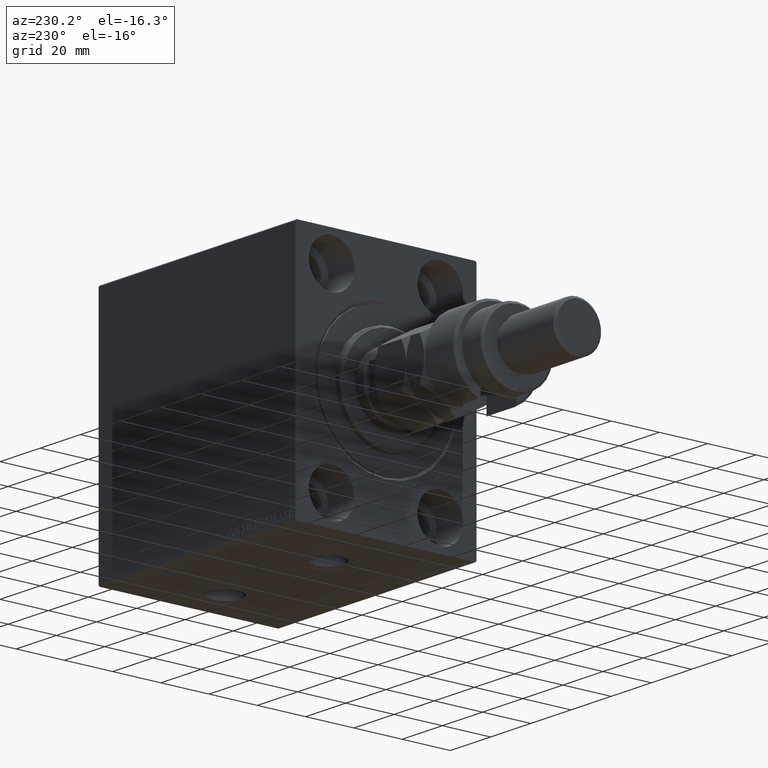
[diagram: clean part render]
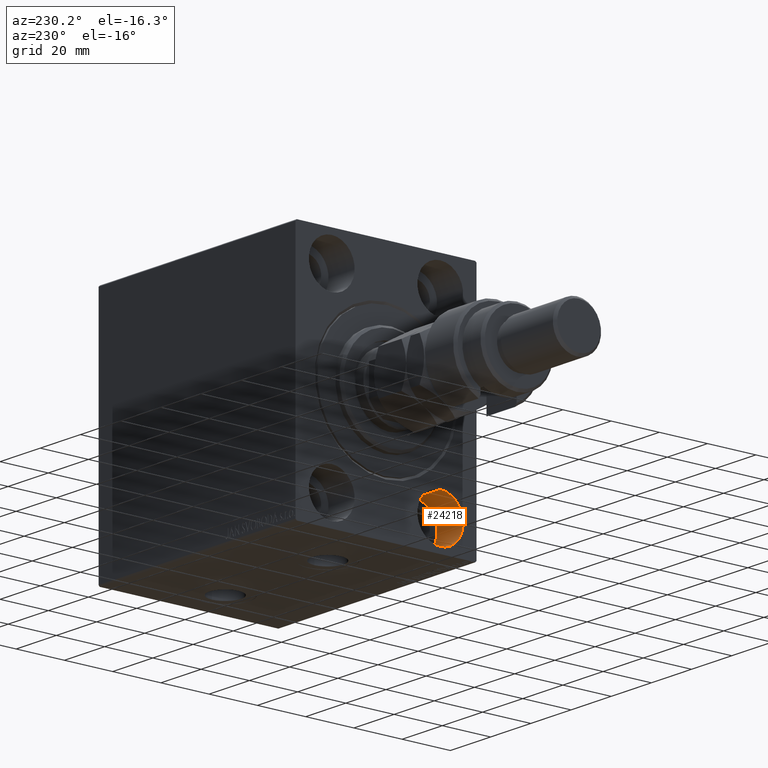
[diagram: same view with one face highlighted and labeled with its STEP entity id]
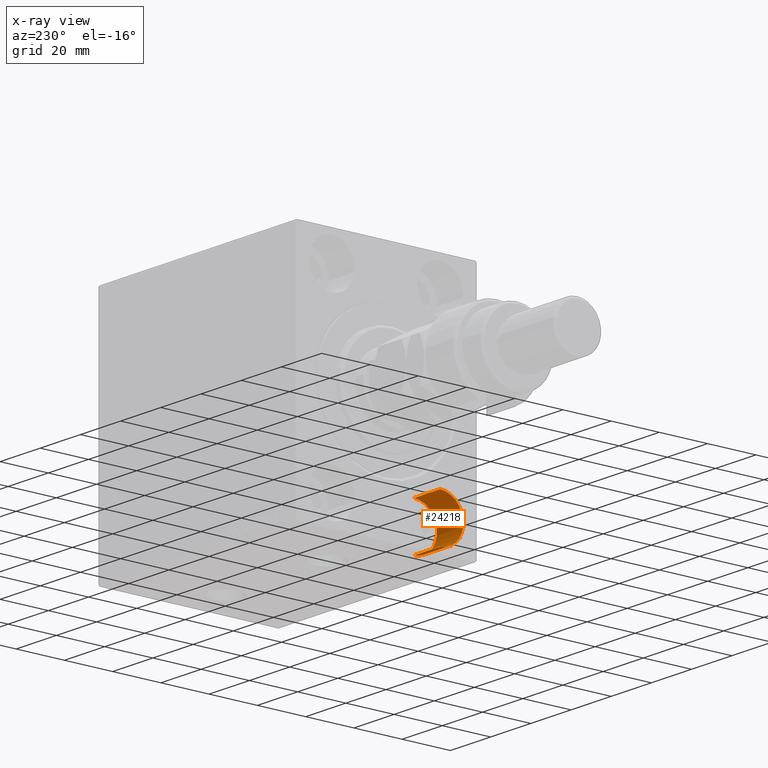
[diagram: x-ray of the same camera — body ghosted, the highlighted face saturated]
A machine part, auxiliary view. The second image highlights one B-rep face of the part: STEP entity #24218.
The next image is the same camera in x-ray: the body ghosted, the highlighted face saturated — about 0% of this face is hidden behind the body in this view.
In plain terms, the highlighted cylindrical surface (edge-blend (fillet) strip) has radius 9.5 mm, axis along (-1, -0, -0).
Its self-contained STEP definition (entity closure, byte-faithful):
#670 = LINE ( 'NONE', #15507, #13563 ) ;
#836 = AXIS2_PLACEMENT_3D ( 'NONE', #4110, #10912, #36983 ) ;
#4043 = EDGE_CURVE ( 'NONE', #7184, #31952, #670, .T. ) ;
#4110 = CARTESIAN_POINT ( 'NONE',  ( 13.00000000000000000, -22.50000000000000711, -37.99999999999999289 ) ) ;
#4923 = DIRECTION ( 'NONE',  ( -1.000000000000000000, 0.000000000000000000, 0.000000000000000000 ) ) ;
#6554 = ORIENTED_EDGE ( 'NONE', *, *, #12625, .F. ) ;
#6568 = ORIENTED_EDGE ( 'NONE', *, *, #4043, .T. ) ;
#7184 = VERTEX_POINT ( 'NONE', #28388 ) ;
#7283 = VERTEX_POINT ( 'NONE', #8831 ) ;
#8831 = CARTESIAN_POINT ( 'NONE',  ( 13.00000000000000000, -22.50000000000000711, -28.49999999999998934 ) ) ;
#10912 = DIRECTION ( 'NONE',  ( -1.000000000000000000, 0.000000000000000000, 0.000000000000000000 ) ) ;
#12625 = EDGE_CURVE ( 'NONE', #7184, #7283, #13259, .T. ) ;
#12637 = DIRECTION ( 'NONE',  ( -1.000000000000000000, -0.000000000000000000, -0.000000000000000000 ) ) ;
#13191 = CYLINDRICAL_SURFACE ( 'NONE', #31398, 9.500000000000001776 ) ;
#13259 = CIRCLE ( 'NONE', #836, 9.500000000000001776 ) ;
#13563 = VECTOR ( 'NONE', #34494, 1000.000000000000000 ) ;
#15181 = AXIS2_PLACEMENT_3D ( 'NONE', #34860, #4923, #19763 ) ;
#15507 = CARTESIAN_POINT ( 'NONE',  ( 13.00000000000000000, -22.50000000000000711, -47.49999999999999289 ) ) ;
#16855 = CARTESIAN_POINT ( 'NONE',  ( 13.00000000000000000, -22.50000000000000711, -37.99999999999999289 ) ) ;
#19763 = DIRECTION ( 'NONE',  ( 0.000000000000000000, 0.000000000000000000, 1.000000000000000000 ) ) ;
#19784 = DIRECTION ( 'NONE',  ( -1.000000000000000000, -0.000000000000000000, -0.000000000000000000 ) ) ;
#20703 = ORIENTED_EDGE ( 'NONE', *, *, #27704, .T. ) ;
#22079 = VERTEX_POINT ( 'NONE', #37134 ) ;
#22520 = CARTESIAN_POINT ( 'NONE',  ( 0.000000000000000000, -22.50000000000000711, -47.49999999999999289 ) ) ;
#24218 = ADVANCED_FACE ( 'NONE', ( #31220 ), #13191, .F. ) ;
#24975 = ORIENTED_EDGE ( 'NONE', *, *, #40881, .F. ) ;
#27704 = EDGE_CURVE ( 'NONE', #31952, #22079, #29946, .T. ) ;
#28388 = CARTESIAN_POINT ( 'NONE',  ( 13.00000000000000000, -22.50000000000000711, -47.49999999999999289 ) ) ;
#29946 = CIRCLE ( 'NONE', #15181, 9.500000000000001776 ) ;
#31220 = FACE_OUTER_BOUND ( 'NONE', #44283, .T. ) ;
#31374 = LINE ( 'NONE', #34090, #44274 ) ;
#31398 = AXIS2_PLACEMENT_3D ( 'NONE', #16855, #19784, #31699 ) ;
#31699 = DIRECTION ( 'NONE',  ( 0.000000000000000000, 0.000000000000000000, 1.000000000000000000 ) ) ;
#31952 = VERTEX_POINT ( 'NONE', #22520 ) ;
#34090 = CARTESIAN_POINT ( 'NONE',  ( 13.00000000000000000, -22.50000000000000711, -28.49999999999998934 ) ) ;
#34494 = DIRECTION ( 'NONE',  ( -1.000000000000000000, -0.000000000000000000, -0.000000000000000000 ) ) ;
#34860 = CARTESIAN_POINT ( 'NONE',  ( 0.000000000000000000, -22.50000000000000711, -37.99999999999999289 ) ) ;
#36983 = DIRECTION ( 'NONE',  ( 0.000000000000000000, 0.000000000000000000, 1.000000000000000000 ) ) ;
#37134 = CARTESIAN_POINT ( 'NONE',  ( 0.000000000000000000, -22.50000000000000711, -28.49999999999998934 ) ) ;
#40881 = EDGE_CURVE ( 'NONE', #7283, #22079, #31374, .T. ) ;
#44274 = VECTOR ( 'NONE', #12637, 1000.000000000000000 ) ;
#44283 = EDGE_LOOP ( 'NONE', ( #6554, #6568, #20703, #24975 ) ) ;